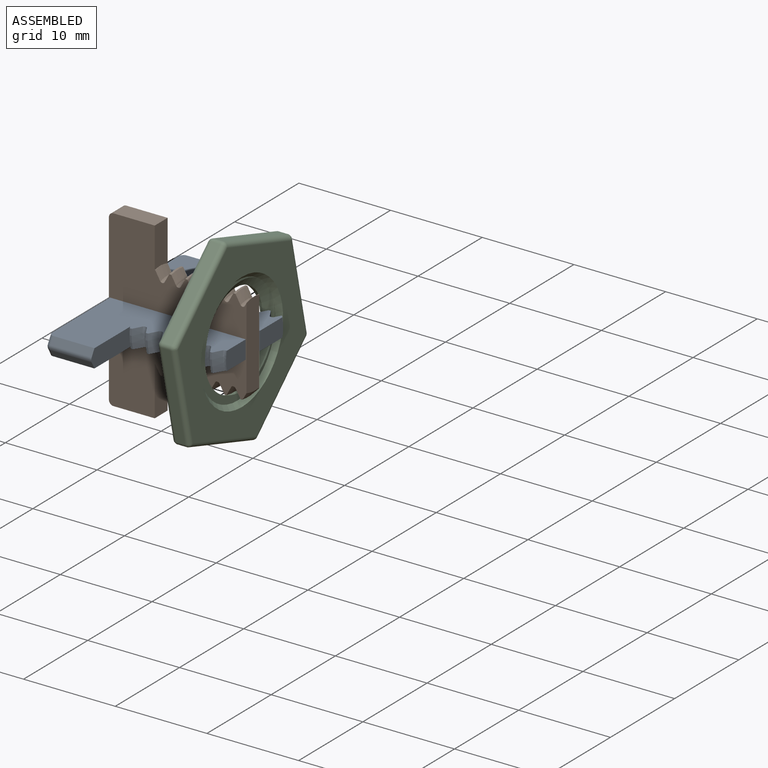
[diagram: assembled view]
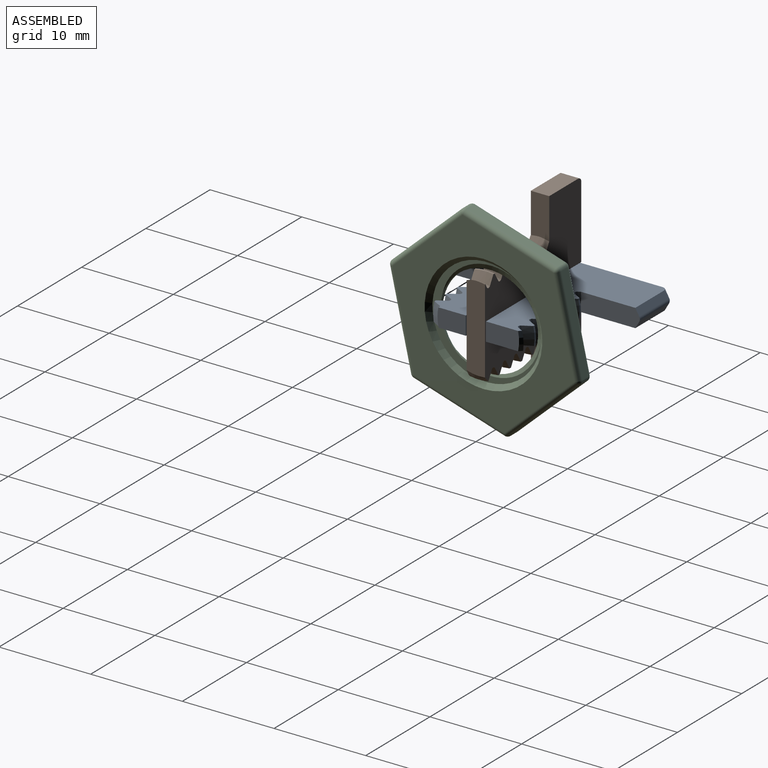
[diagram: assembled view, second angle]
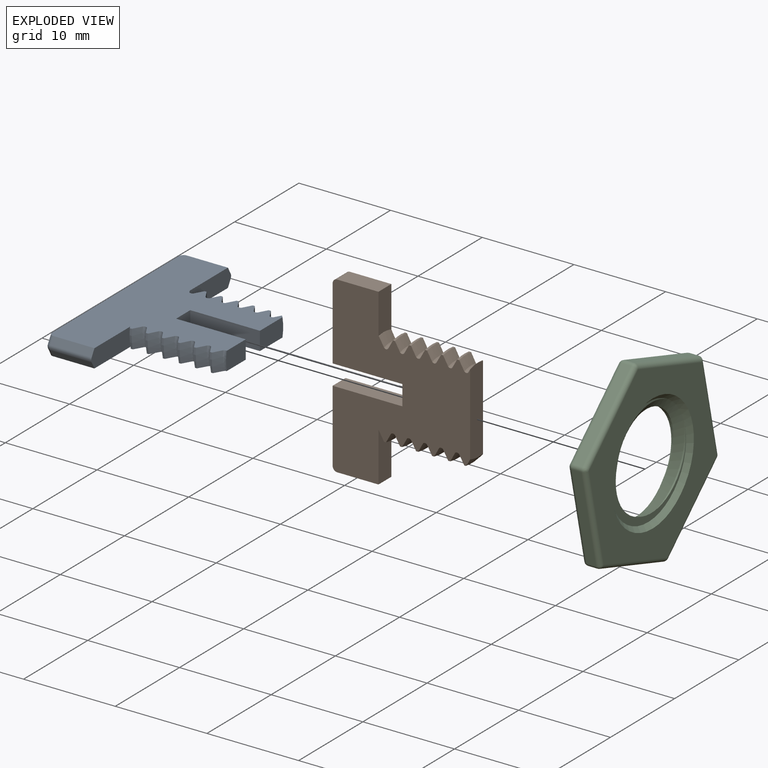
[diagram: exploded view]
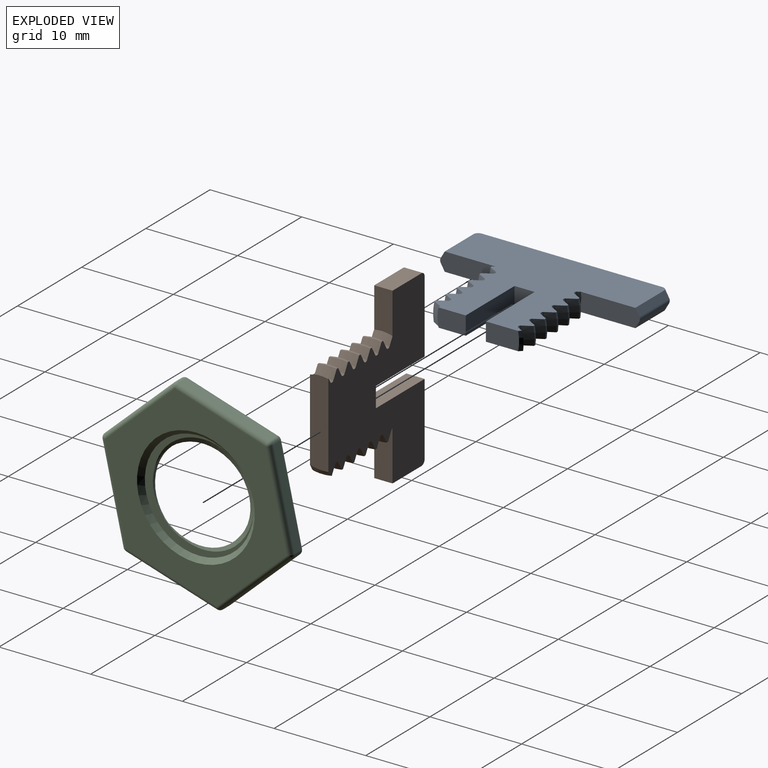
[diagram: exploded view, second angle]
ASSEMBLY  parts=3 mates=2
PART A: 70 faces, bbox 15.4x21.8x5.3 mm
  f0: plane 3.62x2mm, normal (1,0,0), area 7.2mm2, adj f50,f65,f66,f68
  f1: cylinder r=5.22mm len=2mm, axis (-1,0,0), area 0.4mm2, adj f15,f21,f65,f66
  f2: cylinder r=5.22mm len=2mm, axis (-1,0,0), area 0.4mm2, adj f14,f20,f65,f66
  f3: cylinder r=5.22mm len=2mm, axis (-1,0,0), area 0.4mm2, adj f13,f19,f65,f66
  f4: cylinder r=5.22mm len=2mm, axis (-1,0,0), area 0.4mm2, adj f12,f18,f65,f66
  f5: cylinder r=5.22mm len=2mm, axis (-1,0,0), area 0.4mm2, adj f11,f17,f65,f66
  f6: bspline ~4.27x1.35mm, area 1mm2, adj f12,f17,f65,f66
  f7: bspline ~4.27x1.35mm, area 1mm2, adj f13,f18,f65,f66
  f8: bspline ~4.27x1.35mm, area 1mm2, adj f14,f19,f65,f66
  f9: bspline ~4.27x1.35mm, area 1mm2, adj f15,f20,f65,f66
  f10: bspline ~4.27x1.35mm, area 1mm2, adj f16,f21,f65,f66
  f11: bspline ~5.22x2.33mm, area 2.2mm2, adj f5,f30,f65,f66
  f12: bspline ~5.22x2.33mm, area 2.2mm2, adj f4,f6,f65,f66
  f13: bspline ~5.22x2.33mm, area 2.2mm2, adj f3,f7,f65,f66
  f14: bspline ~5.22x2.33mm, area 2.2mm2, adj f2,f8,f65,f66
  f15: bspline ~5.22x2.33mm, area 2.2mm2, adj f1,f9,f65,f66
  f16: bspline ~5.22x2.33mm, area 1.7mm2, adj f10,f50,f65,f66
  f17: bspline ~5.22x2.33mm, area 2.2mm2, adj f5,f6,f65,f66
  f18: bspline ~5.22x2.33mm, area 2.2mm2, adj f4,f7,f65,f66
  f19: bspline ~5.22x2.33mm, area 2.2mm2, adj f3,f8,f65,f66
  f20: bspline ~5.22x2.33mm, area 2.2mm2, adj f2,f9,f65,f66
  f21: bspline ~5.22x2.33mm, area 2.2mm2, adj f1,f10,f65,f66
  f22: plane 6.7x2.04mm, normal (1,0,0), area 12.5mm2, adj f43,f52,f58,f60,f65,f66
  f23: cylinder r=5.22mm len=2mm, axis (-1,0,0), area 0.4mm2, adj f41,f48,f65,f66
  f24: cylinder r=5.22mm len=2mm, axis (-1,0,0), area 0.4mm2, adj f40,f47,f65,f66
  f25: cylinder r=5.22mm len=2mm, axis (-1,0,0), area 0.4mm2, adj f39,f46,f65,f66
  f26: cylinder r=5.22mm len=2mm, axis (-1,0,0), area 0.4mm2, adj f38,f45,f65,f66
  f27: cylinder r=5.22mm len=2mm, axis (-1,0,0), area 0.4mm2, adj f37,f44,f65,f66
  f28: cylinder r=5.22mm len=2mm, axis (-1,0,0), area 0.4mm2, adj f42,f49,f65,f66
  f29: plane 3.09x2.01mm, normal (1,0,0), area 6.1mm2, adj f36,f65,f66,f69
  f30: bspline ~4.27x1.35mm, area 1mm2, adj f11,f43,f65,f66
  f31: bspline ~4.27x1.35mm, area 1mm2, adj f38,f44,f65,f66
  f32: bspline ~4.27x1.35mm, area 1mm2, adj f39,f45,f65,f66
  f33: bspline ~4.27x1.35mm, area 1mm2, adj f40,f46,f65,f66
  f34: bspline ~4.27x1.35mm, area 1mm2, adj f41,f47,f65,f66
  f35: bspline ~4.27x1.35mm, area 1mm2, adj f42,f48,f65,f66
  f36: bspline ~4.27x1.35mm, area 0.6mm2, adj f29,f49,f65,f66
  f37: bspline ~5.22x2.33mm, area 0.9mm2, adj f27,f54,f65,f66
  f38: bspline ~5.22x2.33mm, area 2.2mm2, adj f26,f31,f65,f66
  f39: bspline ~5.22x2.33mm, area 2.2mm2, adj f25,f32,f65,f66
  f40: bspline ~5.22x2.33mm, area 2.2mm2, adj f24,f33,f65,f66
  f41: bspline ~5.22x2.33mm, area 2.2mm2, adj f23,f34,f65,f66
  f42: bspline ~5.22x2.33mm, area 2.2mm2, adj f28,f35,f65,f66
  f43: bspline ~5.22x2.33mm, area 0.4mm2, adj f22,f30,f65,f66
  f44: bspline ~5.22x2.33mm, area 2.2mm2, adj f27,f31,f65,f66
  f45: bspline ~5.22x2.33mm, area 2.2mm2, adj f26,f32,f65,f66
  f46: bspline ~5.22x2.33mm, area 2.2mm2, adj f25,f33,f65,f66
  f47: bspline ~5.22x2.33mm, area 2.2mm2, adj f24,f34,f65,f66
  f48: bspline ~5.22x2.33mm, area 2.2mm2, adj f23,f35,f65,f66
  f49: bspline ~5.22x2.33mm, area 2.2mm2, adj f28,f36,f65,f66
  f50: cone r=4.72mm half-angle=45deg, axis (-1,0,0), area 0.8mm2, adj f0,f16,f65,f66
  f51: plane 4.5x0.75mm, normal (0,-0.87,0.5), area 3.9mm2, adj f54,f56,f62,f65
  f52: plane 4.5x0.75mm, normal (0,0.87,0.5), area 3.9mm2, adj f22,f55,f60,f65
  f53: plane 20.78x2mm, normal (-1,0,0), area 40.4mm2, adj f55,f56,f59,f63,f65,f66
  f54: plane 6.29x2.02mm, normal (1,0,0), area 11.7mm2, adj f37,f51,f57,f62,f65,f66
  f55: cylinder r=0.5mm len=1.25mm, axis (0,0.5,-0.87), area 0.8mm2, adj f52,f53,f61,f65
  f56: cylinder r=0.5mm len=1.25mm, axis (0,0.5,0.87), area 0.8mm2, adj f51,f53,f64,f65
  f57: plane 4.5x0.75mm, normal (0,-0.87,-0.5), area 3.9mm2, adj f54,f62,f63,f66
  f58: plane 4.5x0.75mm, normal (0,0.87,-0.5), area 3.9mm2, adj f22,f59,f60,f66
  f59: cylinder r=0.5mm len=1.25mm, axis (0,-0.5,-0.87), area 0.8mm2, adj f53,f58,f61,f66
  f60: cylinder r=0.5mm len=4.5mm, axis (1,0,0), area 2.4mm2, adj f22,f52,f58,f61
  f61: sphere r=0.5mm, area 0.3mm2, adj f55,f59,f60
  f62: cylinder r=0.5mm len=4.5mm, axis (1,0,0), area 2.4mm2, adj f51,f54,f57,f64
  f63: cylinder r=0.5mm len=1.25mm, axis (0,-0.5,0.87), area 0.8mm2, adj f53,f57,f64,f66
  f64: sphere r=0.5mm, area 0.3mm2, adj f56,f62,f63
  f65: plane 20.83x15.05mm, normal (0,0,1), area 178.2mm2, adj f0,f1,f2,f3,f4,f5,f6,f7
  f66: plane 20.83x15.05mm, normal (0,0,-1), area 178.3mm2, adj f0,f1,f2,f3,f4,f5,f6,f7
  f67: plane 2.2x2mm, normal (1,0,0), area 4.4mm2, adj f65,f66,f68,f69
  f68: plane 7.6x2mm, normal (0,-1,0), area 15.2mm2, adj f0,f65,f66,f67
  f69: plane 7.6x2mm, normal (0,1,0), area 15.2mm2, adj f29,f65,f66,f67
PART B: 64 faces, bbox 15.6x9.1x19 mm
  f0: plane 7.9x2mm, normal (-1,0,0), area 15.8mm2, adj f57,f59,f60,f61
  f1: cylinder r=5.22mm len=2mm, axis (-1,0,0), area 0.2mm2, adj f16,f51,f59,f60
  f2: cylinder r=5.22mm len=2mm, axis (-1,0,0), area 0.4mm2, adj f15,f21,f59,f60
  f3: cylinder r=5.22mm len=2mm, axis (-1,0,0), area 0.4mm2, adj f14,f20,f59,f60
  f4: cylinder r=5.22mm len=2mm, axis (-1,0,0), area 0.4mm2, adj f13,f19,f59,f60
  f5: cylinder r=5.22mm len=2mm, axis (-1,0,0), area 0.4mm2, adj f12,f18,f59,f60
  f6: cylinder r=5.22mm len=2mm, axis (-1,0,0), area 0.4mm2, adj f17,f38,f59,f60
  f7: bspline ~7.4x2.2mm, area 1mm2, adj f12,f17,f59,f60
  f8: bspline ~7.4x2.2mm, area 1mm2, adj f13,f18,f59,f60
  f9: bspline ~7.4x2.2mm, area 1mm2, adj f14,f19,f59,f60
  f10: bspline ~7.4x2.2mm, area 1mm2, adj f15,f20,f59,f60
  f11: bspline ~7.4x2.2mm, area 1mm2, adj f16,f21,f59,f60
  f12: bspline ~9.04x3.08mm, area 2.2mm2, adj f5,f7,f59,f60
  f13: bspline ~9.04x3.08mm, area 2.2mm2, adj f4,f8,f59,f60
  f14: bspline ~9.04x3.08mm, area 2.2mm2, adj f3,f9,f59,f60
  f15: bspline ~9.04x3.08mm, area 2.2mm2, adj f2,f10,f59,f60
  f16: bspline ~9.04x3.08mm, area 2.2mm2, adj f1,f11,f59,f60
  f17: bspline ~9.04x3.08mm, area 2.2mm2, adj f6,f7,f59,f60
  f18: bspline ~9.04x3.08mm, area 2.2mm2, adj f5,f8,f59,f60
  f19: bspline ~9.04x3.08mm, area 2.2mm2, adj f4,f9,f59,f60
  f20: bspline ~9.04x3.08mm, area 2.2mm2, adj f3,f10,f59,f60
  f21: bspline ~9.04x3.08mm, area 2.2mm2, adj f2,f11,f59,f60
  f22: bspline ~9.04x3.08mm, area 0.8mm2, adj f30,f51,f59,f60
  f23: plane 5.46x2.03mm, normal (1,0,0), area 10.7mm2, adj f31,f54,f59,f60
  f24: cylinder r=5.22mm len=2mm, axis (-1,0,0), area 0.4mm2, adj f43,f50,f59,f60
  f25: cylinder r=5.22mm len=2mm, axis (-1,0,0), area 0.4mm2, adj f42,f49,f59,f60
  f26: cylinder r=5.22mm len=2mm, axis (-1,0,0), area 0.4mm2, adj f41,f48,f59,f60
  f27: cylinder r=5.22mm len=2mm, axis (-1,0,0), area 0.4mm2, adj f40,f47,f59,f60
  f28: cylinder r=5.22mm len=2mm, axis (-1,0,0), area 0.4mm2, adj f39,f46,f59,f60
  f29: cylinder r=5.22mm len=1mm, axis (-1,0,0), area 0mm2, adj f45,f56,f60
  f30: plane 9.35x2.04mm, normal (1,0,0), area 18.4mm2, adj f22,f44,f52,f59,f60
  f31: bspline ~7.4x2.2mm, area 0.3mm2, adj f23,f38,f59,f60
  f32: bspline ~7.4x2.2mm, area 1mm2, adj f39,f45,f59,f60
  f33: bspline ~7.4x2.2mm, area 1mm2, adj f40,f46,f59,f60
  f34: bspline ~7.4x2.2mm, area 1mm2, adj f41,f47,f59,f60
  f35: bspline ~7.4x2.2mm, area 1mm2, adj f42,f48,f59,f60
  f36: bspline ~7.4x2.2mm, area 1mm2, adj f43,f49,f59,f60
  f37: bspline ~7.4x2.2mm, area 1mm2, adj f44,f50,f59,f60
  f38: bspline ~9.04x3.08mm, area 2.2mm2, adj f6,f31,f59,f60
  f39: bspline ~9.04x3.08mm, area 2.2mm2, adj f28,f32,f59,f60
  f40: bspline ~9.04x3.08mm, area 2.2mm2, adj f27,f33,f59,f60
  f41: bspline ~9.04x3.08mm, area 2.2mm2, adj f26,f34,f59,f60
  f42: bspline ~9.04x3.08mm, area 2.2mm2, adj f25,f35,f59,f60
  f43: bspline ~9.04x3.08mm, area 2.2mm2, adj f24,f36,f59,f60
  f44: bspline ~9.04x3.08mm, area 1mm2, adj f30,f37,f52,f59,f60
  f45: bspline ~9.04x3.08mm, area 2.2mm2, adj f29,f32,f56,f59,f60
  f46: bspline ~9.04x3.08mm, area 2.2mm2, adj f28,f33,f59,f60
  f47: bspline ~9.04x3.08mm, area 2.2mm2, adj f27,f34,f59,f60
  f48: bspline ~9.04x3.08mm, area 2.2mm2, adj f26,f35,f59,f60
  f49: bspline ~9.04x3.08mm, area 2.2mm2, adj f25,f36,f59,f60
  f50: bspline ~9.04x3.08mm, area 2.2mm2, adj f24,f37,f59,f60
  f51: cone r=4.72mm half-angle=45deg, axis (-1,0,0), area 0.8mm2, adj f1,f22,f59,f60
  f52: cone r=4.72mm half-angle=45deg, axis (-1,0,0), area 0mm2, adj f30,f44,f59
  f53: plane 4.5x2mm, normal (0,0,1), area 9mm2, adj f56,f58,f59,f60
  f54: plane 4.5x2mm, normal (0,0,-1), area 9mm2, adj f23,f57,f59,f60
  f55: plane 7.9x2mm, normal (-1,0,0), area 15.8mm2, adj f58,f59,f60,f62
  f56: plane 4.48x2.01mm, normal (1,0,0), area 8.7mm2, adj f29,f45,f53,f59,f60
  f57: cylinder r=0.5mm len=2mm, axis (0,-1,0), area 1.6mm2, adj f0,f54,f59,f60
  f58: cylinder r=0.5mm len=2mm, axis (0,1,0), area 1.6mm2, adj f53,f55,f59,f60
  f59: plane 19.05x15.05mm, normal (0,1,0), area 169.3mm2, adj f0,f1,f2,f3,f4,f5,f6,f7
  f60: plane 19.05x15.05mm, normal (0,-1,0), area 169.5mm2, adj f0,f1,f2,f3,f4,f5,f6,f7
  f61: plane 7.6x2mm, normal (0,0,1), area 15.2mm2, adj f0,f59,f60,f63
  f62: plane 7.6x2mm, normal (0,0,-1), area 15.2mm2, adj f55,f59,f60,f63
  f63: plane 2.2x2mm, normal (-1,0,0), area 4.4mm2, adj f59,f60,f61,f62
PART C: 48 faces, bbox 2.8x22.2x19.4 mm
  f0: plane 9x5.2mm, normal (0,-0.87,-0.5), area 10.4mm2, adj f36,f41,f44,f47
  f1: plane 10.39x1mm, normal (0,0,-1), area 10.4mm2, adj f33,f42,f43,f47
  f2: plane 9x5.2mm, normal (0,0.87,-0.5), area 10.4mm2, adj f23,f32,f33,f34
  f3: plane 9x5.2mm, normal (0,0.87,0.5), area 10.4mm2, adj f18,f22,f23,f24
  f4: plane 10.39x1mm, normal (0,0,1), area 10.4mm2, adj f18,f21,f25,f26
  f5: plane 9x5.2mm, normal (0,-0.87,0.5), area 10.4mm2, adj f26,f31,f35,f36
  f6: plane 20.78x18mm, normal (1,0,0), area 151.1mm2, adj f9,f21,f22,f31,f32,f41,f42
  f7: plane 20.78x18mm, normal (-1,0,0), area 151.1mm2, adj f8,f24,f25,f34,f35,f43,f44
  f8: cone r=6.42mm half-angle=45deg, axis (-1,0,0), area 27.4mm2, adj f7,f14,f15
  f9: cone r=5.92mm half-angle=45deg, axis (1,0,0), area 27.4mm2, adj f6,f13,f16
  f10: bspline ~13.84x11.98mm, area 21.6mm2, adj f12,f13,f14,f15,f16,f17
  f11: bspline ~13.84x11.98mm, area 21.6mm2, adj f12,f13,f14,f15,f16,f17
  f12: bspline ~14.02x12.14mm, area 5.5mm2, adj f10,f11,f13,f14
  f13: plane 5.84x2.36mm, normal (-1,0,0), area 0.6mm2, adj f9,f10,f11,f12
  f14: plane 4.47x4.39mm, normal (1,0,0), area 0.6mm2, adj f8,f10,f11,f12
  f15: plane 12.27x12.27mm, normal (-1,0,0), area 16.5mm2, adj f8,f10,f11,f17
  f16: plane 12.28x12.17mm, normal (1,0,0), area 16.5mm2, adj f9,f10,f11,f17
  f17: cylinder r=5.04mm len=10.09mm, axis (1,0,0), area 7.9mm2, adj f10,f11,f15,f16
  f18: cylinder r=0.5mm len=1mm, axis (-1,0,0), area 0.5mm2, adj f3,f4,f19,f20
  f19: sphere r=0.5mm, area 0.2mm2, adj f18,f21,f22
  f20: sphere r=0.5mm, area 0.4mm2, adj f18,f24,f25
  f21: cylinder r=0.5mm len=10.39mm, axis (0,1,0), area 8.2mm2, adj f4,f6,f19,f27
  f22: cylinder r=0.5mm len=9.25mm, axis (0,0.5,-0.87), area 8.2mm2, adj f3,f6,f19,f28
  f23: cylinder r=0.5mm len=1mm, axis (-1,0,0), area 0.5mm2, adj f2,f3,f28,f29
  f24: cylinder r=0.5mm len=9.25mm, axis (0,-0.5,0.87), area 8.2mm2, adj f3,f7,f20,f29
  f25: cylinder r=0.5mm len=10.39mm, axis (0,-1,0), area 8.2mm2, adj f4,f7,f20,f30
  f26: cylinder r=0.5mm len=1mm, axis (-1,0,0), area 0.5mm2, adj f4,f5,f27,f30
  f27: sphere r=0.5mm, area 0.3mm2, adj f21,f26,f31
  f28: sphere r=0.5mm, area 0.2mm2, adj f22,f23,f32
  f29: sphere r=0.5mm, area 0.2mm2, adj f23,f24,f34
  f30: sphere r=0.5mm, area 0.3mm2, adj f25,f26,f35
  f31: cylinder r=0.5mm len=9.25mm, axis (0,0.5,0.87), area 8.2mm2, adj f5,f6,f27,f37
  f32: cylinder r=0.5mm len=9.25mm, axis (0,-0.5,-0.87), area 8.2mm2, adj f2,f6,f28,f38
  f33: cylinder r=0.5mm len=1mm, axis (-1,0,0), area 0.5mm2, adj f1,f2,f38,f39
  f34: cylinder r=0.5mm len=9.25mm, axis (0,0.5,0.87), area 8.2mm2, adj f2,f7,f29,f39
  f35: cylinder r=0.5mm len=9.25mm, axis (0,-0.5,-0.87), area 8.2mm2, adj f5,f7,f30,f40
  f36: cylinder r=0.5mm len=1mm, axis (-1,0,0), area 0.5mm2, adj f0,f5,f37,f40
  f37: sphere r=0.5mm, area 0.3mm2, adj f31,f36,f41
  f38: sphere r=0.5mm, area 0.2mm2, adj f32,f33,f42
  f39: sphere r=0.5mm, area 0.4mm2, adj f33,f34,f43
  f40: sphere r=0.5mm, area 0.2mm2, adj f35,f36,f44
  f41: cylinder r=0.5mm len=9.25mm, axis (0,-0.5,0.87), area 8.2mm2, adj f0,f6,f37,f45
  f42: cylinder r=0.5mm len=10.39mm, axis (0,-1,0), area 8.2mm2, adj f1,f6,f38,f45
  f43: cylinder r=0.5mm len=10.39mm, axis (0,1,0), area 8.2mm2, adj f1,f7,f39,f46
  f44: cylinder r=0.5mm len=9.25mm, axis (0,0.5,-0.87), area 8.2mm2, adj f0,f7,f40,f46
  f45: sphere r=0.5mm, area 0.3mm2, adj f41,f42,f47
  f46: sphere r=0.5mm, area 0.3mm2, adj f43,f44,f47
  f47: cylinder r=0.5mm len=1mm, axis (-1,0,0), area 0.5mm2, adj f0,f1,f45,f46
PLACE A at identity fixed
PLACE B t=(0,32,0)mm
PLACE C rot(axis=(0,-0.99,0.15),180deg) t=(8.8,-40.28,12.49)mm
MATE fastened A.f1 <-> B.f1  axis (-1,0,0) through (-5,0,0)mm
MATE cylindrical A.f1 <-> C.f8  axis (-1,0,0) through (10,0,0)mm
